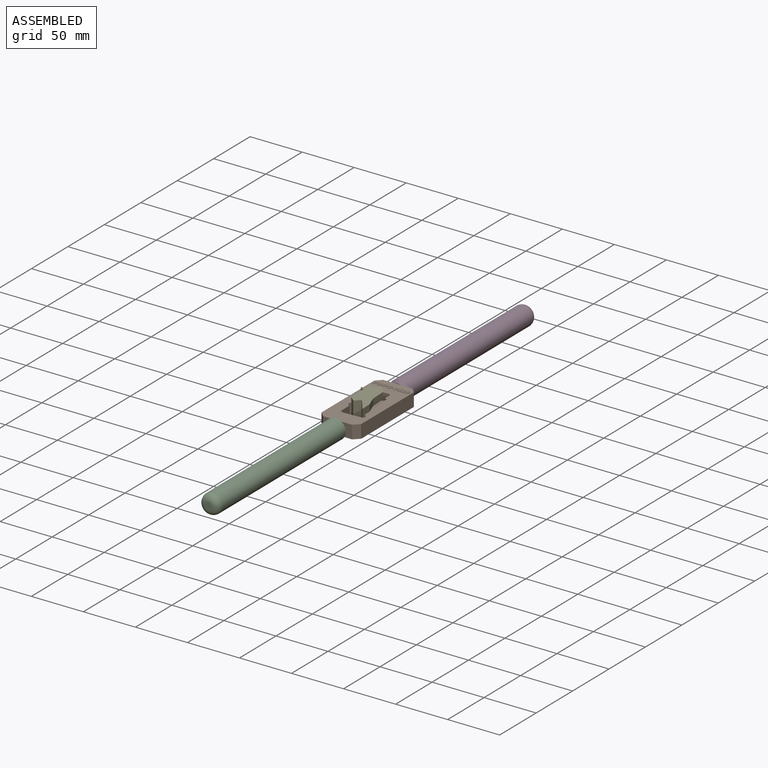
[diagram: assembled view]
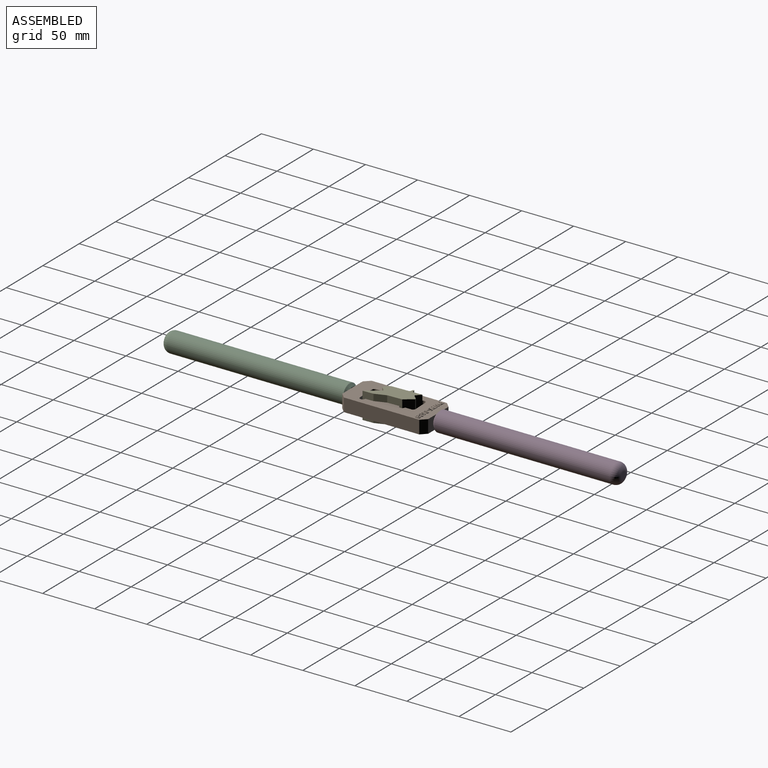
[diagram: assembled view, second angle]
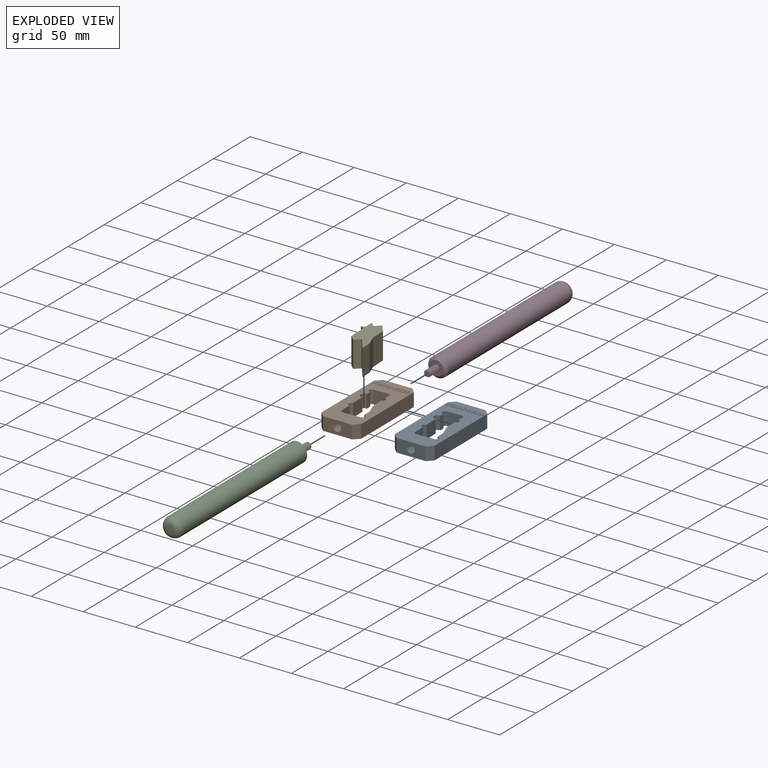
[diagram: exploded view]
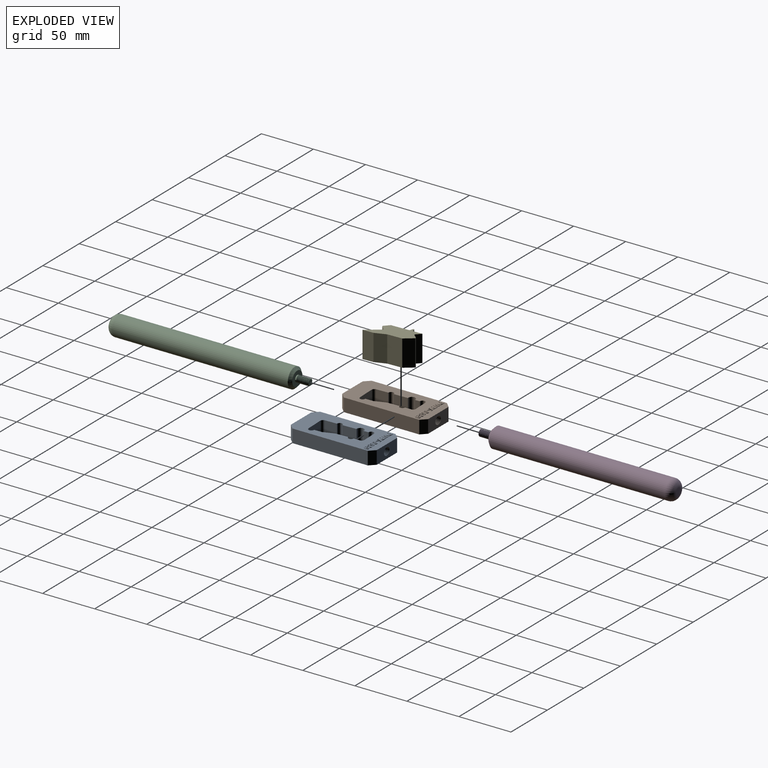
[diagram: exploded view, second angle]
ASSEMBLY  parts=5 mates=3
PART A: 236 faces, bbox 38.5x84.4x13.6 mm
  f0: plane 82.55x38.1mm, normal (0,0,1), area 2101.6mm2, adj f1,f2,f3,f4,f5,f6,f7,f8
  f1: plane 72.39x12.7mm, normal (1,0,0), area 919.4mm2, adj f0,f21,f23,f24
  f2: plane 28.38x13.14mm, normal (0,1,0), area 310.2mm2, adj f0,f21,f22,f23,f36,f38,f39
  f3: plane 72.39x12.7mm, normal (-1,0,0), area 919.4mm2, adj f0,f21,f22,f25
  f4: cylinder r=2.54mm len=12.7mm, axis (0,0,1), area 101.5mm2, adj f0,f5,f19,f21
  f5: extruded ~13.22x12.7mm, area 168mm2, adj f0,f4,f6,f21
  f6: cylinder r=3.39mm len=12.7mm, axis (0,0,1), area 148.9mm2, adj f0,f5,f7,f21
  f7: plane 12.7x4.52mm, normal (1,0.04,0), area 57.5mm2, adj f0,f6,f8,f21
  f8: cylinder r=2.54mm len=12.7mm, axis (0,0,1), area 101.3mm2, adj f0,f7,f9,f21
  f9: plane 12.7x0mm, normal (1,0.04,0), area 0mm2, adj f0,f8,f10,f21
  f10: plane 13.73x12.7mm, normal (0.04,-1,0), area 174.5mm2, adj f0,f9,f21,f30
  f11: plane 12.7x5.93mm, normal (-1,0,0), area 75.3mm2, adj f0,f12,f21,f30
  f12: cylinder r=2.54mm len=12.7mm, axis (0,0,1), area 100mm2, adj f0,f11,f13,f21
  f13: plane 12.7x11.73mm, normal (-1,-0.04,0), area 149mm2, adj f0,f12,f14,f21
  f14: plane 12.7x10.36mm, normal (-0.94,-0.34,0), area 140mm2, adj f0,f13,f15,f21
  f15: plane 12.7x7.72mm, normal (-1,-0.03,0), area 98.1mm2, adj f0,f14,f16,f21
  f16: cylinder r=2.54mm len=12.7mm, axis (0,0,1), area 101.3mm2, adj f0,f15,f17,f21
  f17: plane 12.7x0mm, normal (-1,-0.03,0), area 0mm2, adj f0,f16,f18,f21
  f18: plane 16.88x12.7mm, normal (-0.04,1,0), area 214.5mm2, adj f0,f17,f21,f31
  f19: plane 12.7x11.5mm, normal (1,0.04,0), area 146.1mm2, adj f0,f4,f21,f31
  f20: plane 28.38x13.14mm, normal (0,-1,0), area 310.2mm2, adj f0,f21,f24,f25,f32,f33,f34
  f21: plane 82.55x38.1mm, normal (0,0,-1), area 2191.4mm2, adj f1,f2,f3,f4,f5,f6,f7,f8
  f22: plane 12.7x5.08mm, normal (-0.71,0.71,0), area 91.2mm2, adj f0,f2,f3,f21
  f23: plane 12.7x5.08mm, normal (0.71,0.71,0), area 91.2mm2, adj f0,f1,f2,f21
  f24: plane 12.7x5.08mm, normal (0.71,-0.71,0), area 91.2mm2, adj f0,f1,f20,f21
  f25: plane 12.7x5.08mm, normal (-0.71,-0.71,0), area 91.2mm2, adj f0,f3,f20,f21
  f26: cone r=0mm half-angle=59deg, axis (0,-1,0), area 36.9mm2, adj f27
  f27: cylinder r=3.17mm len=12.37mm, axis (0,-1,0), area 14.1mm2, adj f26,f32,f33,f34,f35
  f28: cone r=0mm half-angle=59deg, axis (0,1,0), area 73.9mm2, adj f29,f38
  f29: cylinder r=3.17mm len=12.37mm, axis (0,1,0), area 14.1mm2, adj f28,f36,f37,f38,f39
  f30: cylinder r=2.54mm len=12.7mm, axis (0,0,-1), area 51.8mm2, adj f0,f10,f11,f21
  f31: cylinder r=2.54mm len=12.7mm, axis (0,0,1), area 50.7mm2, adj f0,f18,f19,f21
  f32: cone r=3.17mm half-angle=45deg, axis (0,-1,0), area 1.7mm2, adj f20,f27,f33,f34
  f33: bspline ~13.13x8.3mm, area 282.3mm2, adj f20,f27,f32,f34,f35
  f34: bspline ~12.7x8.5mm, area 268.6mm2, adj f20,f27,f32,f33,f35
  f35: plane 1.24x1.08mm, normal (-0.01,0,1), area 0.7mm2, adj f27,f33,f34
  f36: cone r=3.17mm half-angle=45deg, axis (0,1,0), area 1.7mm2, adj f2,f29,f38,f39
  f37: plane 1.24x1.08mm, normal (-0.01,0,1), area 0.7mm2, adj f29,f38,f39
  f38: bspline ~13.32x9.82mm, area 281.8mm2, adj f2,f28,f29,f36,f37,f39
  f39: bspline ~12.9x9.82mm, area 268.7mm2, adj f2,f29,f36,f37,f38
  f40: extruded ~1.16x0.51mm, area 0.7mm2, adj f0,f41,f55,f56
  f41: extruded ~1.1x0.51mm, area 0.6mm2, adj f0,f40,f42,f56
  f42: extruded ~1.3x0.51mm, area 0.7mm2, adj f0,f41,f43,f56
  f43: plane 1.5x0.51mm, normal (0,1,0), area 0.8mm2, adj f0,f42,f44,f56
  f44: plane 4.69x0.51mm, normal (-1,0,0), area 2.4mm2, adj f0,f43,f45,f56
  f45: plane 1x0.51mm, normal (0,-1,0), area 0.5mm2, adj f0,f44,f46,f56
  f46: plane 1.67x0.51mm, normal (1,0,0), area 0.8mm2, adj f0,f45,f47,f56
  f47: plane 0.51x0.43mm, normal (0,-1,0), area 0.2mm2, adj f0,f46,f55,f56
  f48: plane 0.51x0.33mm, normal (0,1,0), area 0.2mm2, adj f49,f54,f56,f57
  f49: plane 1.39x0.51mm, normal (1,0,0), area 0.7mm2, adj f48,f50,f56,f57
  f50: plane 0.51x0.45mm, normal (0,-1,0), area 0.2mm2, adj f49,f51,f56,f57
  f51: extruded ~0.6x0.51mm, area 0.3mm2, adj f50,f52,f56,f57
  f52: extruded ~0.52x0.51mm, area 0.3mm2, adj f51,f53,f56,f57
  f53: extruded ~0.53x0.51mm, area 0.3mm2, adj f52,f54,f56,f57
  f54: extruded ~0.69x0.51mm, area 0.4mm2, adj f48,f53,f56,f57
  f55: extruded ~1.35x0.51mm, area 0.7mm2, adj f0,f40,f47,f56
  f56: plane 4.69x3.24mm, normal (0,0,1), area 9mm2, adj f40,f41,f42,f43,f44,f45,f46,f47
  f57: plane 1.39x1.24mm, normal (0,0,1), area 1.5mm2, adj f48,f49,f50,f51,f52,f53,f54
  f58: plane 1.13x0.51mm, normal (0,-1,0), area 0.6mm2, adj f0,f59,f81,f82
  f59: plane 4.69x1.19mm, normal (0.97,-0.25,0), area 2.5mm2, adj f0,f58,f60,f82
  f60: plane 0.98x0.51mm, normal (0,1,0), area 0.5mm2, adj f0,f59,f61,f82
  f61: plane 2.56x0.6mm, normal (-0.97,0.23,0), area 1.3mm2, adj f0,f60,f62,f82
  f62: extruded ~0.61x0.51mm, area 0.3mm2, adj f0,f61,f63,f82
  f63: extruded ~0.62x0.51mm, area 0.3mm2, adj f0,f62,f64,f82
  f64: extruded ~0.62x0.51mm, area 0.3mm2, adj f0,f63,f65,f82
  f65: extruded ~0.54x0.51mm, area 0.3mm2, adj f0,f64,f66,f82
  f66: plane 2.63x0.68mm, normal (0.97,0.25,0), area 1.4mm2, adj f0,f65,f67,f82
  f67: plane 0.94x0.51mm, normal (0,1,0), area 0.5mm2, adj f0,f66,f68,f82
  f68: plane 2.63x0.68mm, normal (-0.97,0.25,0), area 1.4mm2, adj f0,f67,f69,f82
  f69: extruded ~0.6x0.51mm, area 0.3mm2, adj f0,f68,f70,f82
  f70: extruded ~0.57x0.51mm, area 0.3mm2, adj f0,f69,f71,f82
  f71: extruded ~1.23x0.51mm, area 0.6mm2, adj f0,f70,f72,f82
  f72: plane 2.56x0.6mm, normal (0.97,0.23,0), area 1.3mm2, adj f0,f71,f73,f82
  f73: plane 0.98x0.51mm, normal (0,1,0), area 0.5mm2, adj f0,f72,f74,f82
  f74: plane 4.69x1.2mm, normal (-0.97,-0.25,0), area 2.5mm2, adj f0,f73,f75,f82
  f75: plane 1.13x0.51mm, normal (0,-1,0), area 0.6mm2, adj f0,f74,f76,f82
  f76: plane 2.46x0.63mm, normal (0.97,-0.25,0), area 1.3mm2, adj f0,f75,f77,f82
  f77: extruded ~0.55x0.51mm, area 0.3mm2, adj f0,f76,f78,f82
  f78: extruded ~0.56x0.51mm, area 0.3mm2, adj f0,f77,f79,f82
  f79: extruded ~0.55x0.51mm, area 0.3mm2, adj f0,f78,f80,f82
  f80: extruded ~0.54x0.51mm, area 0.3mm2, adj f0,f79,f81,f82
  f81: plane 2.47x0.64mm, normal (-0.97,-0.25,0), area 1.3mm2, adj f0,f58,f80,f82
  f82: plane 6.36x4.69mm, normal (0,0,1), area 15.2mm2, adj f58,f59,f60,f61,f62,f63,f64,f65
  f83: extruded ~1.16x0.51mm, area 0.7mm2, adj f0,f84,f98,f99
  f84: extruded ~1.1x0.51mm, area 0.6mm2, adj f0,f83,f85,f99
  f85: extruded ~1.3x0.51mm, area 0.7mm2, adj f0,f84,f86,f99
  f86: plane 1.5x0.51mm, normal (0,1,0), area 0.8mm2, adj f0,f85,f87,f99
  f87: plane 4.69x0.51mm, normal (-1,0,0), area 2.4mm2, adj f0,f86,f88,f99
  f88: plane 1x0.51mm, normal (0,-1,0), area 0.5mm2, adj f0,f87,f89,f99
  f89: plane 1.67x0.51mm, normal (1,0,0), area 0.8mm2, adj f0,f88,f90,f99
  f90: plane 0.51x0.43mm, normal (0,-1,0), area 0.2mm2, adj f0,f89,f98,f99
  f91: plane 0.51x0.33mm, normal (0,1,0), area 0.2mm2, adj f92,f97,f99,f100
  f92: plane 1.39x0.51mm, normal (1,0,0), area 0.7mm2, adj f91,f93,f99,f100
  f93: plane 0.51x0.45mm, normal (0,-1,0), area 0.2mm2, adj f92,f94,f99,f100
  f94: extruded ~0.6x0.51mm, area 0.3mm2, adj f93,f95,f99,f100
  f95: extruded ~0.52x0.51mm, area 0.3mm2, adj f94,f96,f99,f100
  f96: extruded ~0.53x0.51mm, area 0.3mm2, adj f95,f97,f99,f100
  f97: extruded ~0.69x0.51mm, area 0.4mm2, adj f91,f96,f99,f100
  f98: extruded ~1.35x0.51mm, area 0.7mm2, adj f0,f83,f90,f99
  f99: plane 4.69x3.24mm, normal (0,0,1), area 9mm2, adj f83,f84,f85,f86,f87,f88,f89,f90
  f100: plane 1.39x1.24mm, normal (0,0,1), area 1.5mm2, adj f91,f92,f93,f94,f95,f96,f97
  f101: extruded ~1x0.51mm, area 0.6mm2, adj f0,f102,f128,f129
  f102: extruded ~0.78x0.51mm, area 0.4mm2, adj f0,f101,f103,f129
  f103: extruded ~0.9x0.63mm, area 0.6mm2, adj f0,f102,f104,f129
  f104: extruded ~0.63x0.51mm, area 0.4mm2, adj f0,f103,f105,f129
  f105: extruded ~0.51x0.19mm, area 0.1mm2, adj f0,f104,f106,f129
  f106: extruded ~0.51x0.23mm, area 0.1mm2, adj f0,f105,f107,f129
  f107: extruded ~0.51x0.34mm, area 0.2mm2, adj f0,f106,f108,f129
  f108: extruded ~0.51x0.43mm, area 0.2mm2, adj f0,f107,f109,f129
  f109: extruded ~0.51x0.48mm, area 0.2mm2, adj f0,f108,f110,f129
  f110: extruded ~0.62x0.51mm, area 0.3mm2, adj f0,f109,f111,f129
  f111: plane 0.77x0.51mm, normal (0.92,-0.38,0), area 0.4mm2, adj f0,f110,f112,f129
  f112: extruded ~0.7x0.51mm, area 0.4mm2, adj f0,f111,f113,f129
  f113: extruded ~0.7x0.51mm, area 0.4mm2, adj f0,f112,f114,f129
  f114: extruded ~1.17x0.51mm, area 0.6mm2, adj f0,f113,f115,f129
  f115: extruded ~0.98x0.51mm, area 0.6mm2, adj f0,f114,f116,f129
  f116: extruded ~0.58x0.51mm, area 0.3mm2, adj f0,f115,f117,f129
  f117: extruded ~0.51x0.43mm, area 0.3mm2, adj f0,f116,f118,f129
  f118: extruded ~0.64x0.51mm, area 0.4mm2, adj f0,f117,f119,f129
  f119: extruded ~0.61x0.51mm, area 0.3mm2, adj f0,f118,f120,f129
  f120: extruded ~0.51x0.23mm, area 0.2mm2, adj f0,f119,f121,f129
  f121: extruded ~0.51x0.25mm, area 0.1mm2, adj f0,f120,f122,f129
  f122: extruded ~0.51x0.37mm, area 0.2mm2, adj f0,f121,f123,f129
  f123: extruded ~0.51x0.5mm, area 0.3mm2, adj f0,f122,f124,f129
  f124: extruded ~0.6x0.51mm, area 0.3mm2, adj f0,f123,f125,f129
  f125: extruded ~0.8x0.51mm, area 0.4mm2, adj f0,f124,f126,f129
  f126: plane 0.92x0.51mm, normal (-1,0,0), area 0.5mm2, adj f0,f125,f127,f129
  f127: extruded ~1.33x0.51mm, area 0.7mm2, adj f0,f126,f128,f129
  f128: extruded ~1.27x0.51mm, area 0.7mm2, adj f0,f101,f127,f129
  f129: plane 4.83x3.06mm, normal (0,0,1), area 8.3mm2, adj f101,f102,f103,f104,f105,f106,f107,f108
  f130: plane 0.8x0.51mm, normal (-1,0,0), area 0.4mm2, adj f0,f131,f133,f134
  f131: plane 1.72x0.51mm, normal (0,-1,0), area 0.9mm2, adj f0,f130,f132,f134
  f132: plane 0.8x0.51mm, normal (1,0,0), area 0.4mm2, adj f0,f131,f133,f134
  f133: plane 1.72x0.51mm, normal (0,1,0), area 0.9mm2, adj f0,f130,f132,f134
  f134: plane 1.72x0.8mm, normal (0,0,1), area 1.4mm2, adj f130,f131,f132,f133
  f135: extruded ~1.24x0.51mm, area 0.6mm2, adj f136,f150,f151,f152
  f136: extruded ~1.24x0.51mm, area 0.6mm2, adj f135,f137,f151,f152
  f137: extruded ~0.51x0.5mm, area 0.3mm2, adj f136,f138,f151,f152
  f138: extruded ~0.51x0.5mm, area 0.3mm2, adj f137,f139,f151,f152
  f139: extruded ~1.24x0.51mm, area 0.6mm2, adj f138,f140,f151,f152
  f140: extruded ~1.23x0.51mm, area 0.6mm2, adj f139,f141,f151,f152
  f141: extruded ~0.51x0.5mm, area 0.3mm2, adj f140,f150,f151,f152
  f142: extruded ~1.82x0.51mm, area 1mm2, adj f0,f143,f149,f151
  f143: extruded ~1.81x0.51mm, area 1mm2, adj f0,f142,f144,f151
  f144: extruded ~1.23x0.62mm, area 0.7mm2, adj f0,f143,f145,f151
  f145: extruded ~1.24x0.59mm, area 0.7mm2, adj f0,f144,f146,f151
  f146: extruded ~1.83x0.51mm, area 1mm2, adj f0,f145,f147,f151
  f147: extruded ~1.8x0.51mm, area 1mm2, adj f0,f146,f148,f151
  f148: extruded ~1.23x0.61mm, area 0.7mm2, adj f0,f147,f149,f151
  f149: extruded ~1.24x0.59mm, area 0.7mm2, adj f0,f142,f148,f151
  f150: extruded ~0.51x0.5mm, area 0.3mm2, adj f135,f141,f151,f152
  f151: plane 4.83x3.28mm, normal (0,0,1), area 9.6mm2, adj f135,f136,f137,f138,f139,f140,f141,f142
  f152: plane 3.23x1.31mm, normal (0,0,1), area 3.6mm2, adj f135,f136,f137,f138,f139,f140,f141,f150
  f153: extruded ~0.51x0.49mm, area 0.3mm2, adj f154,f177,f178,f179
  f154: extruded ~0.51x0.51mm, area 0.3mm2, adj f153,f155,f178,f179
  f155: extruded ~0.65x0.51mm, area 0.3mm2, adj f154,f156,f178,f179
  f156: extruded ~0.51x0.46mm, area 0.3mm2, adj f155,f157,f178,f179
  f157: extruded ~0.52x0.51mm, area 0.3mm2, adj f156,f158,f178,f179
  f158: extruded ~0.51x0.48mm, area 0.3mm2, adj f157,f159,f178,f179
  f159: extruded ~0.54x0.51mm, area 0.3mm2, adj f158,f177,f178,f179
  f160: extruded ~2.07x0.59mm, area 1.1mm2, adj f0,f161,f176,f178
  f161: extruded ~1.11x0.51mm, area 0.6mm2, adj f0,f160,f162,f178
  f162: extruded ~0.7x0.6mm, area 0.5mm2, adj f0,f161,f163,f178
  f163: extruded ~0.91x0.51mm, area 0.5mm2, adj f0,f162,f164,f178
  f164: extruded ~1.17x0.51mm, area 0.7mm2, adj f0,f163,f165,f178
  f165: extruded ~1.19x0.51mm, area 0.7mm2, adj f0,f164,f166,f178
  f166: extruded ~1.09x0.51mm, area 0.6mm2, adj f0,f165,f167,f178
  f167: extruded ~0.99x0.51mm, area 0.6mm2, adj f0,f166,f168,f178
  f168: extruded ~1.02x0.55mm, area 0.6mm2, adj f0,f167,f169,f178
  f169: plane 0.51x0.04mm, normal (0,1,0), area 0mm2, adj f0,f168,f170,f178
  f170: extruded ~0.86x0.51mm, area 0.4mm2, adj f0,f169,f171,f178
  f171: extruded ~0.51x0.48mm, area 0.3mm2, adj f0,f170,f172,f178
  f172: extruded ~0.83x0.51mm, area 0.4mm2, adj f0,f171,f173,f178
  f173: extruded ~0.57x0.51mm, area 0.3mm2, adj f0,f172,f174,f178
  f174: plane 0.79x0.51mm, normal (1,0,0), area 0.4mm2, adj f0,f173,f175,f178
  f175: extruded ~0.63x0.51mm, area 0.3mm2, adj f0,f174,f176,f178
  f176: extruded ~1.76x0.68mm, area 1mm2, adj f0,f160,f175,f178
  f177: extruded ~0.61x0.51mm, area 0.3mm2, adj f153,f159,f178,f179
  f178: plane 4.81x3.31mm, normal (0,0,1), area 9.4mm2, adj f153,f154,f155,f156,f157,f158,f159,f160
  f179: plane 1.56x1.37mm, normal (0,0,1), area 1.7mm2, adj f153,f154,f155,f156,f157,f158,f159,f177
  f180: extruded ~0.75x0.51mm, area 0.4mm2, adj f0,f181,f206,f207
  f181: extruded ~0.82x0.51mm, area 0.5mm2, adj f0,f180,f182,f207
  f182: extruded ~1.15x0.51mm, area 0.6mm2, adj f0,f181,f183,f207
  f183: extruded ~1.53x0.51mm, area 0.8mm2, adj f0,f182,f184,f207
  f184: plane 0.68x0.51mm, normal (-0.83,-0.56,0), area 0.4mm2, adj f0,f183,f185,f207
  f185: extruded ~0.53x0.51mm, area 0.3mm2, adj f0,f184,f186,f207
  f186: extruded ~0.51x0.47mm, area 0.2mm2, adj f0,f185,f187,f207
  f187: extruded ~0.67x0.53mm, area 0.5mm2, adj f0,f186,f188,f207
  f188: extruded ~0.51x0.49mm, area 0.3mm2, adj f0,f187,f189,f207
  f189: extruded ~0.8x0.51mm, area 0.4mm2, adj f0,f188,f190,f207
  f190: plane 0.51x0.36mm, normal (0,1,0), area 0.2mm2, adj f0,f189,f191,f207
  f191: plane 0.76x0.51mm, normal (-1,0,0), area 0.4mm2, adj f0,f190,f192,f207
  f192: plane 0.51x0.36mm, normal (0,-1,0), area 0.2mm2, adj f0,f191,f193,f207
  f193: extruded ~0.86x0.51mm, area 0.4mm2, adj f0,f192,f194,f207
  f194: extruded ~0.51x0.47mm, area 0.3mm2, adj f0,f193,f195,f207
  f195: extruded ~0.54x0.51mm, area 0.3mm2, adj f0,f194,f196,f207
  f196: extruded ~0.73x0.51mm, area 0.4mm2, adj f0,f195,f197,f207
  f197: extruded ~0.65x0.51mm, area 0.3mm2, adj f0,f196,f198,f207
  f198: extruded ~0.6x0.51mm, area 0.3mm2, adj f0,f197,f199,f207
  f199: plane 0.84x0.51mm, normal (-1,0,0), area 0.4mm2, adj f0,f198,f200,f207
  f200: extruded ~1.36x0.51mm, area 0.7mm2, adj f0,f199,f201,f207
  f201: extruded ~1.4x0.51mm, area 0.8mm2, adj f0,f200,f202,f207
  f202: extruded ~1.05x0.51mm, area 0.6mm2, adj f0,f201,f203,f207
  f203: extruded ~0.74x0.51mm, area 0.4mm2, adj f0,f202,f204,f207
  f204: extruded ~0.86x0.51mm, area 0.5mm2, adj f0,f203,f205,f207
  f205: plane 0.51x0.02mm, normal (1,0,0), area 0mm2, adj f0,f204,f206,f207
  f206: extruded ~0.75x0.51mm, area 0.4mm2, adj f0,f180,f205,f207
  f207: plane 4.83x3.25mm, normal (0,0,1), area 8.3mm2, adj f180,f181,f182,f183,f184,f185,f186,f187
  f208: extruded ~0.51x0.48mm, area 0.3mm2, adj f209,f233,f234,f235
  f209: extruded ~0.51x0.51mm, area 0.3mm2, adj f208,f210,f234,f235
  f210: extruded ~0.64x0.51mm, area 0.3mm2, adj f209,f211,f234,f235
  f211: extruded ~0.51x0.45mm, area 0.3mm2, adj f210,f212,f234,f235
  f212: extruded ~0.52x0.51mm, area 0.3mm2, adj f211,f213,f234,f235
  f213: extruded ~0.51x0.48mm, area 0.3mm2, adj f212,f214,f234,f235
  f214: extruded ~0.54x0.51mm, area 0.3mm2, adj f213,f233,f234,f235
  f215: extruded ~2.07x0.58mm, area 1.1mm2, adj f0,f216,f232,f234
  f216: extruded ~1.11x0.51mm, area 0.6mm2, adj f0,f215,f217,f234
  f217: extruded ~0.71x0.6mm, area 0.5mm2, adj f0,f216,f218,f234
  f218: extruded ~0.91x0.51mm, area 0.5mm2, adj f0,f217,f219,f234
  f219: extruded ~1.17x0.51mm, area 0.7mm2, adj f0,f218,f220,f234
  f220: extruded ~1.19x0.51mm, area 0.7mm2, adj f0,f219,f221,f234
  f221: extruded ~1.09x0.51mm, area 0.6mm2, adj f0,f220,f222,f234
  f222: extruded ~0.97x0.51mm, area 0.5mm2, adj f0,f221,f223,f234
  f223: extruded ~0.61x0.51mm, area 0.3mm2, adj f0,f222,f224,f234
  f224: extruded ~0.51x0.43mm, area 0.3mm2, adj f0,f223,f225,f234
  f225: plane 0.51x0.04mm, normal (0,-1,0), area 0mm2, adj f0,f224,f226,f234
  f226: extruded ~0.86x0.51mm, area 0.5mm2, adj f0,f225,f227,f234
  f227: extruded ~0.51x0.49mm, area 0.3mm2, adj f0,f226,f228,f234
  f228: extruded ~0.82x0.51mm, area 0.4mm2, adj f0,f227,f229,f234
  f229: extruded ~0.57x0.51mm, area 0.3mm2, adj f0,f228,f230,f234
  f230: plane 0.8x0.51mm, normal (-1,0,0), area 0.4mm2, adj f0,f229,f231,f234
  f231: extruded ~0.63x0.51mm, area 0.3mm2, adj f0,f230,f232,f234
  f232: extruded ~1.77x0.68mm, area 1mm2, adj f0,f215,f231,f234
  f233: extruded ~0.61x0.51mm, area 0.3mm2, adj f208,f214,f234,f235
  f234: plane 4.81x3.31mm, normal (0,0,1), area 9.4mm2, adj f208,f209,f210,f211,f212,f213,f214,f215
  f235: plane 1.56x1.37mm, normal (0,0,1), area 1.7mm2, adj f208,f209,f210,f211,f212,f213,f214,f233
PART B: same geometry as A
PART C: 12 faces, bbox 19.5x191.7x19.5 mm
  f0: cylinder r=9.53mm len=168.91mm, axis (0,1,0), area 10108.8mm2, adj f5,f6
  f1: plane 13.97x13.97mm, normal (0,-1,0), area 121.6mm2, adj f3,f5,f11
  f2: plane 6.35x6.35mm, normal (0,1,0), area 31.7mm2, adj f6
  f3: cylinder r=3.17mm len=12.38mm, axis (0,1,0), area 12.3mm2, adj f1,f7,f8,f9,f10
  f4: plane 5.78x5.46mm, normal (0,-1,0), area 21.4mm2, adj f7,f9,f10
  f5: cone r=6.99mm half-angle=45deg, axis (0,1,0), area 186.3mm2, adj f0,f1
  f6: torus R=3.17mm, axis (0,-1,0), area 452.3mm2, adj f0,f2
  f7: cone r=2.86mm half-angle=45deg, axis (0,1,0), area 1.4mm2, adj f3,f4,f9,f10
  f8: plane 1.24x1.08mm, normal (0,0,-1), area 0.7mm2, adj f3,f9,f10,f11
  f9: bspline ~12.9x7.33mm, area 190.3mm2, adj f3,f4,f7,f8,f10
  f10: bspline ~13.32x7.33mm, area 201.3mm2, adj f3,f4,f7,f8,f9,f11
  f11: cylinder r=3.17mm len=0.19mm, axis (0,1,0), area 0mm2, adj f1,f8,f10
PART D: same geometry as C
PART E: 22 faces, bbox 24.2x43.1x25.5 mm
  f0: cylinder r=1317.21mm len=25.4mm, axis (0,0,1), area 155.5mm2, adj f1,f19,f20,f21
  f1: extruded ~25.4x1.44mm, area 40.5mm2, adj f0,f2,f20,f21
  f2: plane 25.4x3.67mm, normal (0.72,-0.69,0), area 129.1mm2, adj f1,f3,f20,f21
  f3: extruded ~25.4x1.17mm, area 33.8mm2, adj f2,f4,f20,f21
  f4: cylinder r=18184.96mm len=25.4mm, axis (0,0,1), area 400.9mm2, adj f3,f5,f20,f21
  f5: plane 25.4x10.02mm, normal (1,0.03,0), area 254.8mm2, adj f4,f6,f20,f21
  f6: cylinder r=1.52mm len=25.4mm, axis (0,0,-1), area 12.2mm2, adj f5,f7,f20,f21
  f7: plane 25.4x10.13mm, normal (0.94,0.34,0), area 273.8mm2, adj f6,f8,f20,f21
  f8: cylinder r=1.52mm len=25.4mm, axis (0,0,-1), area 12.2mm2, adj f7,f9,f20,f21
  f9: plane 25.4x13.8mm, normal (1,0.03,0), area 350.6mm2, adj f8,f10,f20,f21
  f10: plane 25.4x7.75mm, normal (0.8,0.6,0), area 246.5mm2, adj f9,f11,f20,f21
  f11: cylinder r=1.02mm len=25.4mm, axis (0,0,-1), area 45mm2, adj f10,f12,f20,f21
  f12: plane 25.4x3.8mm, normal (-0.73,0.68,0), area 131.8mm2, adj f11,f13,f20,f21
  f13: cylinder r=0.76mm len=25.4mm, axis (0,0,-1), area 30.4mm2, adj f12,f14,f20,f21
  f14: plane 25.4x4.26mm, normal (0.68,0.73,0), area 147.9mm2, adj f13,f15,f20,f21
  f15: plane 25.4x8.17mm, normal (-1,-0.04,0), area 207.7mm2, adj f14,f16,f20,f21
  f16: extruded ~25.4x1.31mm, area 52mm2, adj f15,f17,f20,f21
  f17: extruded ~25.4x2.79mm, area 147.9mm2, adj f16,f18,f20,f21
  f18: cylinder r=1.28mm len=25.4mm, axis (0,0,1), area 39mm2, adj f17,f19,f20,f21
  f19: cylinder r=12846.19mm len=25.4mm, axis (0,0,-1), area 422.9mm2, adj f0,f18,f20,f21
  f20: plane 43.11x24.23mm, normal (0,0,1), area 530.7mm2, adj f0,f1,f2,f3,f4,f5,f6,f7
  f21: plane 43.11x24.23mm, normal (0,0,-1), area 530.7mm2, adj f0,f1,f2,f3,f4,f5,f6,f7
PLACE A t=(-12.01,1.81,-7.33)mm
PLACE B t=(-12.01,1.81,-7.33)mm
PLACE C rot(axis=(0,0,-1),180deg) t=(-8.74,-127.43,11.72)mm
PLACE D t=(-8.79,132.92,11.72)mm
PLACE E rot(axis=(0,0,1),0deg) t=(-11.97,1.69,-0.98)mm
MATE slider E.f7 <-> B.f14  axis (0.94,0.34,0) through (0.37,-5.3,11.72)mm
MATE revolute C.f0 <-> B.f20  axis (0,1,0) through (-8.74,-38.53,11.72)mm
MATE revolute D.f0 <-> B.f27  axis (0,-1,0) through (-8.79,44.02,11.72)mm
